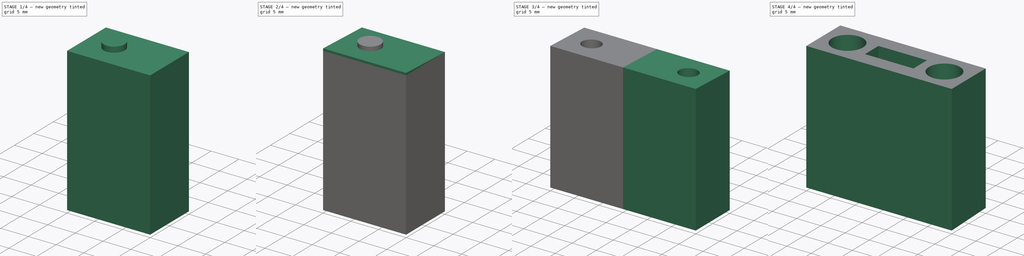
[diagram: build sequence overview — one tinted view per stage of 4, left to right]
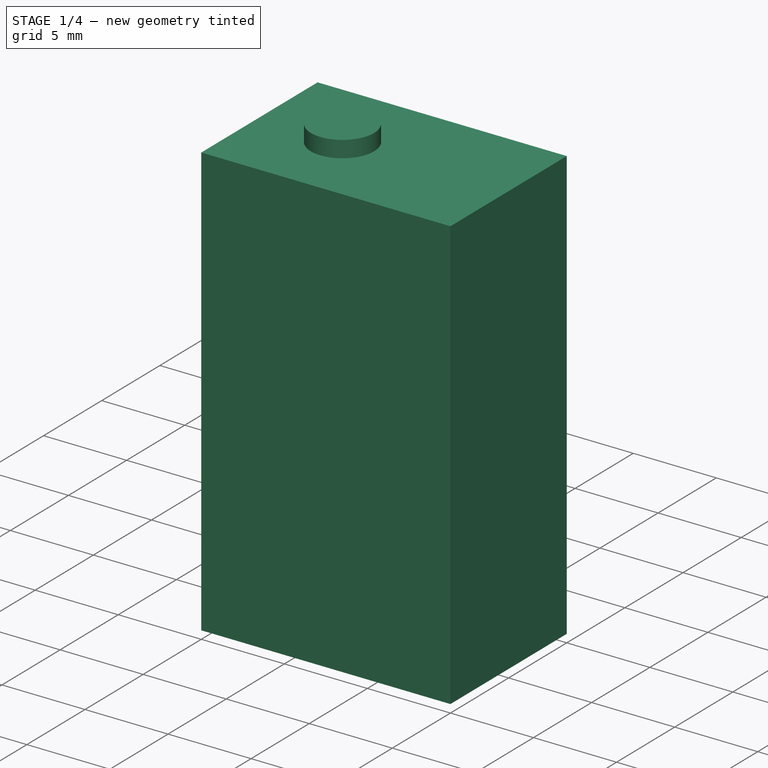
[diagram: stage 1 of 4 — iso view after this stage's code; geometry added in this stage tinted green]
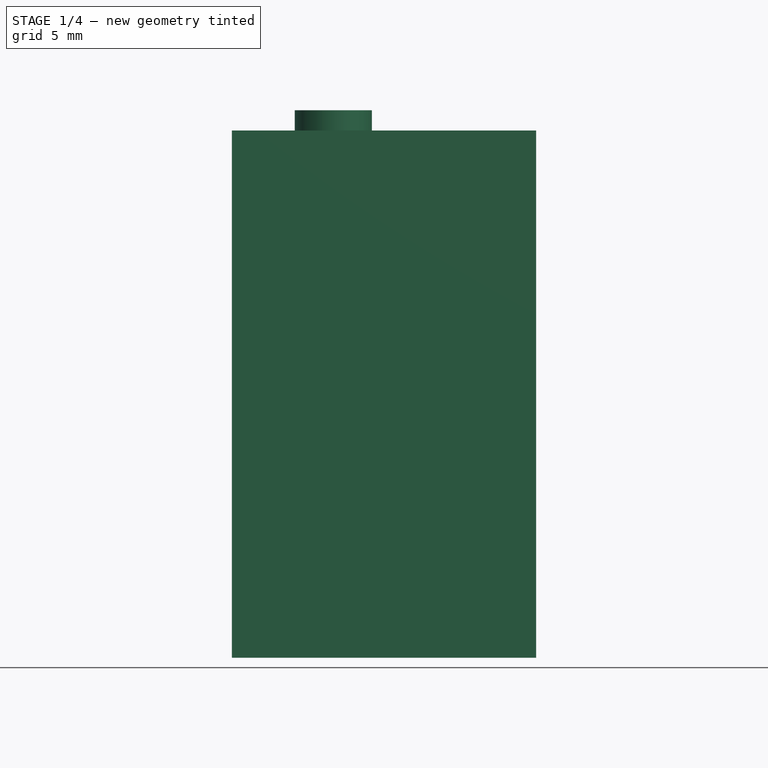
[diagram: stage 1 of 4 — front view after this stage's code; geometry added in this stage tinted green]
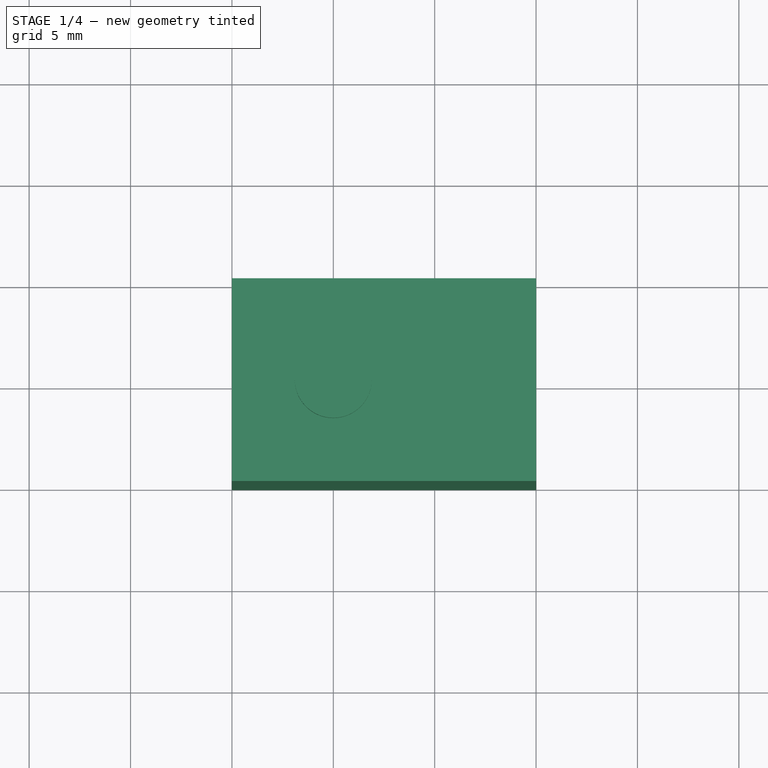
[diagram: stage 1 of 4 — top view after this stage's code; geometry added in this stage tinted green]
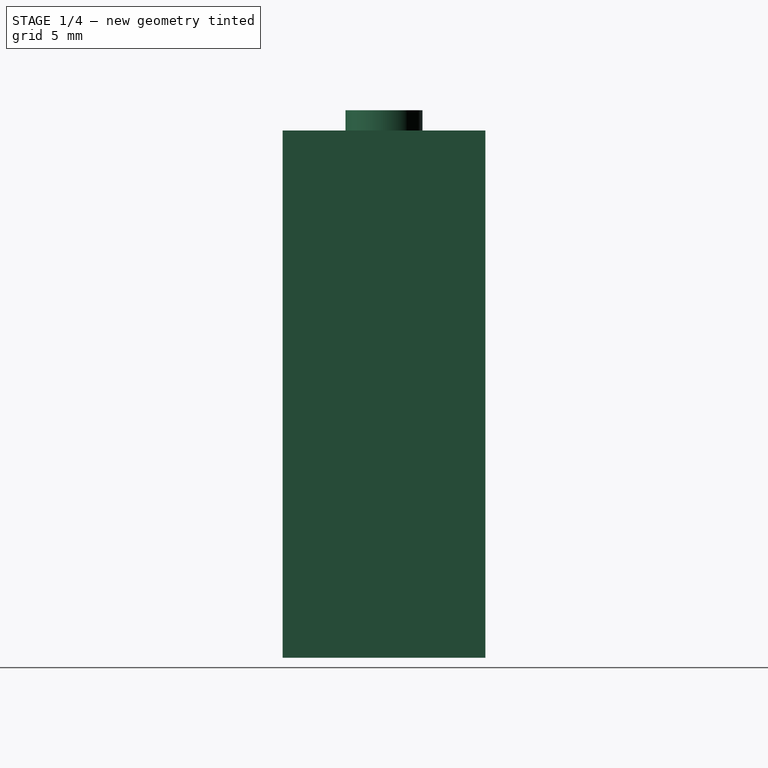
[diagram: stage 1 of 4 — right view after this stage's code; geometry added in this stage tinted green]
FCSTD DOCUMENT  (FreeCAD 0.15R4671 (Git))
Label: support_moustiquaires2
License: All rights reserved
LicenseURL: http://fr.wikipedia.org/wiki/<copyright redacted>
objects: Sketcher::SketchObject×6, PartDesign::Pad×2, Part::Mirroring×2, Part::MultiFuse×1, PartDesign::Revolution×1, Part::Cut×1, Part::Fuse×1, PartDesign::Pocket×1
note: 19 computed .brp shape members not serialized (recipe doc carries the construction recipe); baked Part::Feature solids carry a one-line shape summary decoded from their .brp

FEATURE [Sketcher::SketchObject] Sketch
  sketch-geometry (4):
    g0: LineSegment StartX=0 StartY=0 StartZ=0 EndX=15 EndY=0 EndZ=0
    g1: LineSegment StartX=15 StartY=0 StartZ=0 EndX=15 EndY=10 EndZ=0
    g2: LineSegment StartX=15 StartY=10 StartZ=0 EndX=0 EndY=10 EndZ=0
    g3: LineSegment StartX=0 StartY=10 StartZ=0 EndX=0 EndY=0 EndZ=0
  constraints (11):
    c: Coincident(g0,g1)
    c: Coincident(g1,g2)
    c: Coincident(g2,g3)
    c: Coincident(g3,g0)
    c: Horizontal(g0)
    c: Horizontal(g2)
    c: Vertical(g1)
    c: Vertical(g3)
    c: Coincident(g0,g-1)
    c: DistanceY(g-1,g1) = 10
    c: DistanceX(g-1,g1) = 15
FEATURE [PartDesign::Pad] Pad
  Length = 26
  Length2 = 100
  Sketch = -> Sketch
  Type = 0
FEATURE [Sketcher::SketchObject] Sketch002
  Placement = pos=(0,0,0) rot=(1,0,0;3.14159rad)
  Support = -> Fusion [Face3]
  sketch-geometry (1):
    g0: Circle CenterX=5 CenterY=-5 CenterZ=0 NormalX=0 NormalY=0 NormalZ=1 Radius=1.7
  constraints (3):
    c: DistanceX(g-1,g0) = 5
    c: DistanceY(g-1,g0) = -5
    c: Radius(g0) = 1.7
FEATURE [Sketcher::SketchObject] Sketch003
  Placement = pos=(0,0,0) rot=(1,0,0;3.14159rad)
  sketch-geometry (1):
    g0: Circle CenterX=5 CenterY=-5 CenterZ=0 NormalX=0 NormalY=0 NormalZ=1 Radius=3.2
  constraints (1):
    c: Radius(g0) = 3.2
FEATURE [Sketcher::SketchObject] Sketch004
  Placement = pos=(5,0,0) rot=(0.57735,0.57735,0.57735;2.0944rad)
  sketch-geometry (6):
    g0: LineSegment StartX=5 StartY=0 StartZ=0 EndX=8.2 EndY=0 EndZ=0
    g1: LineSegment StartX=8.2 StartY=0 StartZ=0 EndX=8.2 EndY=10 EndZ=0
    g2: LineSegment StartX=8.2 StartY=10 StartZ=0 EndX=6.9 EndY=11.3 EndZ=0
    g3: LineSegment StartX=6.9 StartY=11.3 StartZ=0 EndX=6.9 EndY=27 EndZ=0
    g4: LineSegment StartX=6.9 StartY=27 StartZ=0 EndX=5 EndY=27 EndZ=0
    g5: LineSegment StartX=5 StartY=27 StartZ=0 EndX=5 EndY=0 EndZ=0
  constraints (18):
    c: PointOnObject(g0,g-1)
    c: Horizontal(g0)
    c: Coincident(g0,g1)
    c: Vertical(g1)
    c: Coincident(g1,g2)
    c: Coincident(g2,g3)
    c: Vertical(g3)
    c: Coincident(g3,g4)
    c: Horizontal(g4)
    c: Coincident(g4,g5)
    c: Coincident(g5,g0)
    c: Vertical(g5)
    c: DistanceX(g-1,g0) = 5
    c: DistanceX(g0) = 3.2
    c: DistanceY(g-1,g1) = 10
    c: DistanceY(g-1,g4) = 27
    c: DistanceX(g4) = -1.9
    c: Angle(g2,g0) = 0.785398
FEATURE [PartDesign::Revolution] Revolution
  Angle = 360
  Axis = (0,0,-8.88305)
  Base = (5,5,13.2)
  Placement = pos=(5,0,0) rot=(0.57735,0.57735,0.57735;2.0944rad)
  ReferenceAxis = -> Sketch004 [Axis0]
  Sketch = -> Sketch004
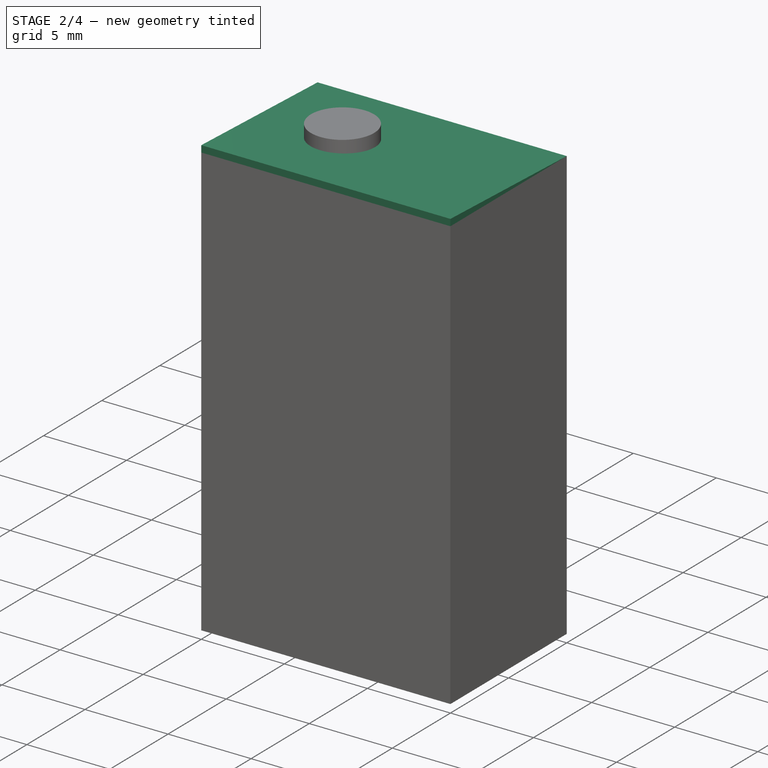
[diagram: stage 2 of 4 — iso view after this stage's code; geometry added in this stage tinted green]
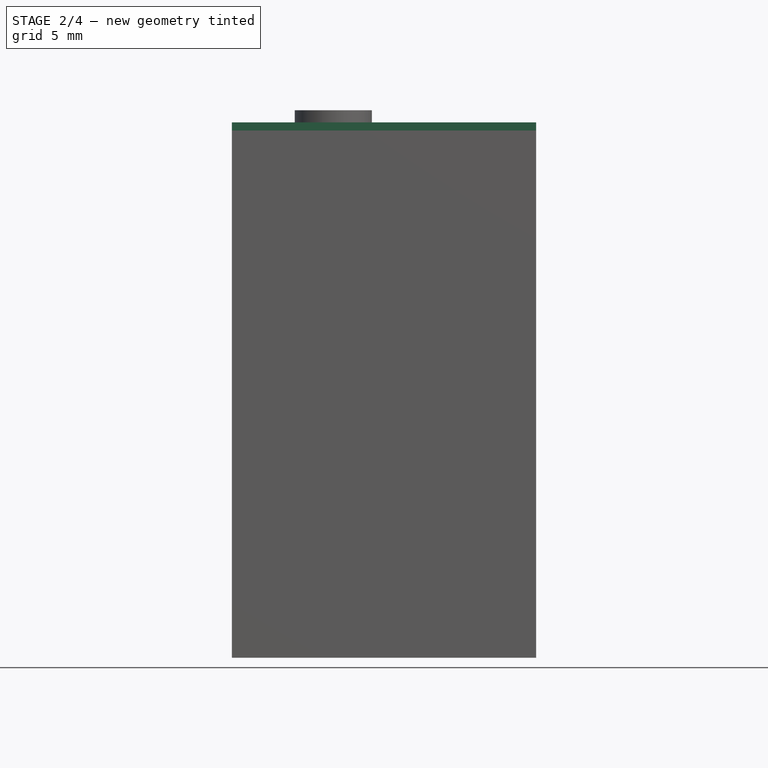
[diagram: stage 2 of 4 — front view after this stage's code; geometry added in this stage tinted green]
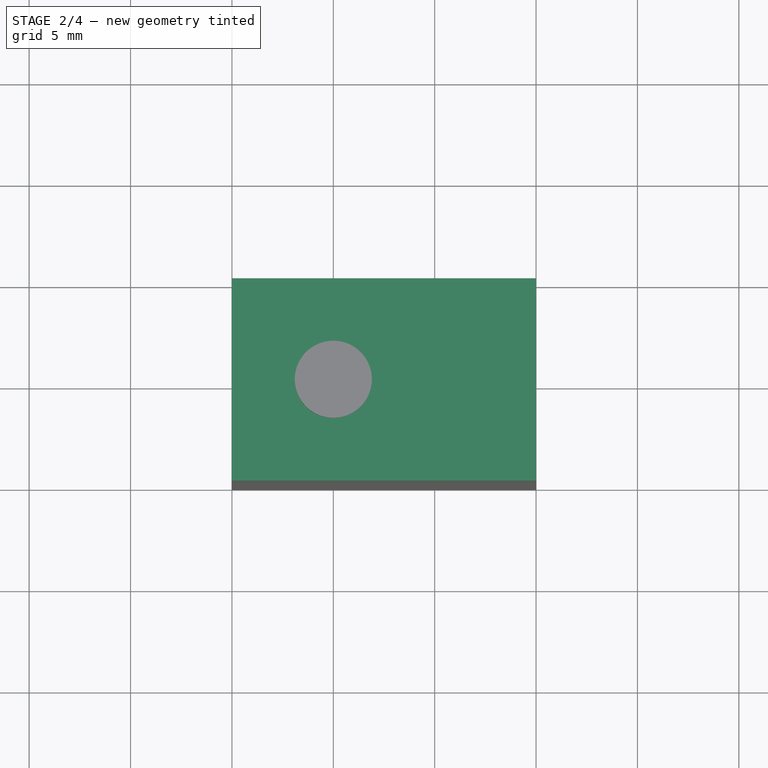
[diagram: stage 2 of 4 — top view after this stage's code; geometry added in this stage tinted green]
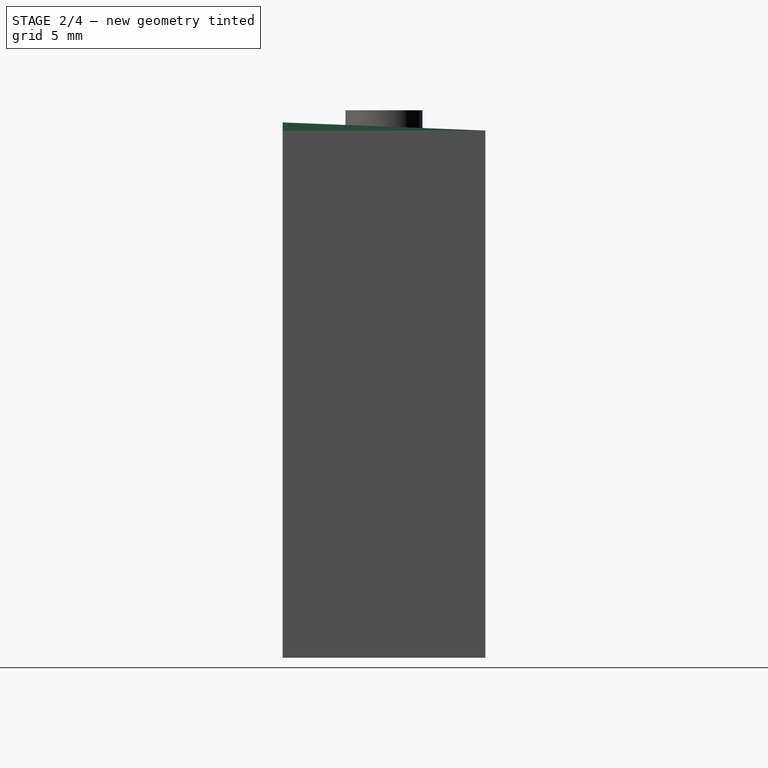
[diagram: stage 2 of 4 — right view after this stage's code; geometry added in this stage tinted green]
FEATURE [Sketcher::SketchObject] Sketch001
  ExternalGeometry = -> [Pad]
  Placement = pos=(15,0,0) rot=(0.57735,0.57735,0.57735;2.0944rad)
  Support = -> Pad [Face2]
  sketch-geometry (3):
    g0: LineSegment StartX=0 StartY=26 StartZ=0 EndX=10 EndY=26 EndZ=0
    g1: LineSegment StartX=10 StartY=26 StartZ=0 EndX=0 EndY=26.4 EndZ=0
    g2: LineSegment StartX=0 StartY=26.4 StartZ=0 EndX=0 EndY=26 EndZ=0
  constraints (7):
    c: Coincident(g-3,g0)
    c: Coincident(g0,g-3)
    c: Coincident(g0,g1)
    c: Coincident(g1,g2)
    c: Coincident(g2,g0)
    c: Vertical(g2)
    c: DistanceY(g1,g0) = -0.4
FEATURE [PartDesign::Pad] Pad001
  Length = 15
  Length2 = 100
  Reversed = true
  Sketch = -> Sketch001
  Type = 0
FEATURE [Part::MultiFuse] Fusion
  Shapes = -> [Pad,Pad001]
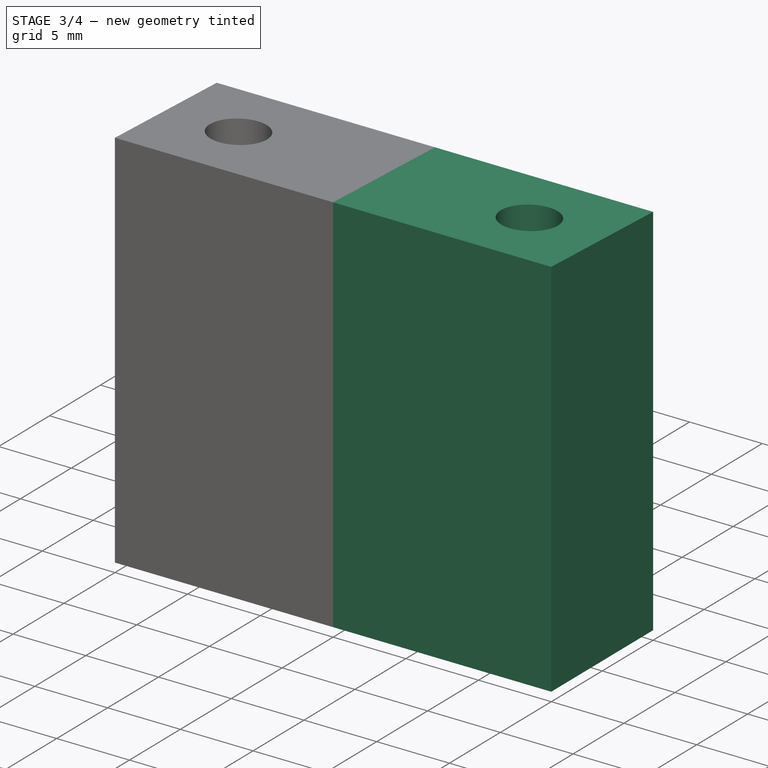
[diagram: stage 3 of 4 — iso view after this stage's code; geometry added in this stage tinted green]
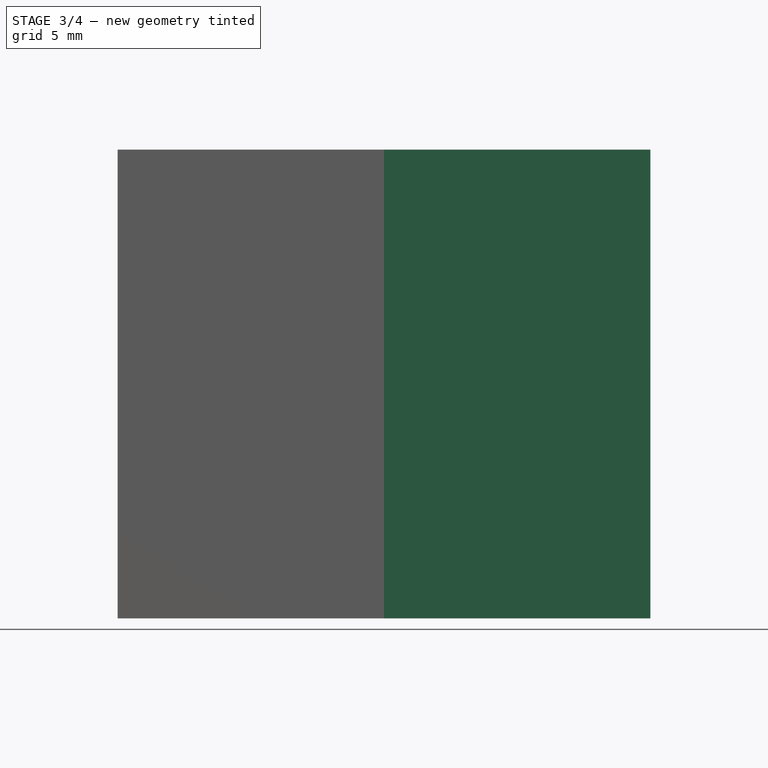
[diagram: stage 3 of 4 — front view after this stage's code; geometry added in this stage tinted green]
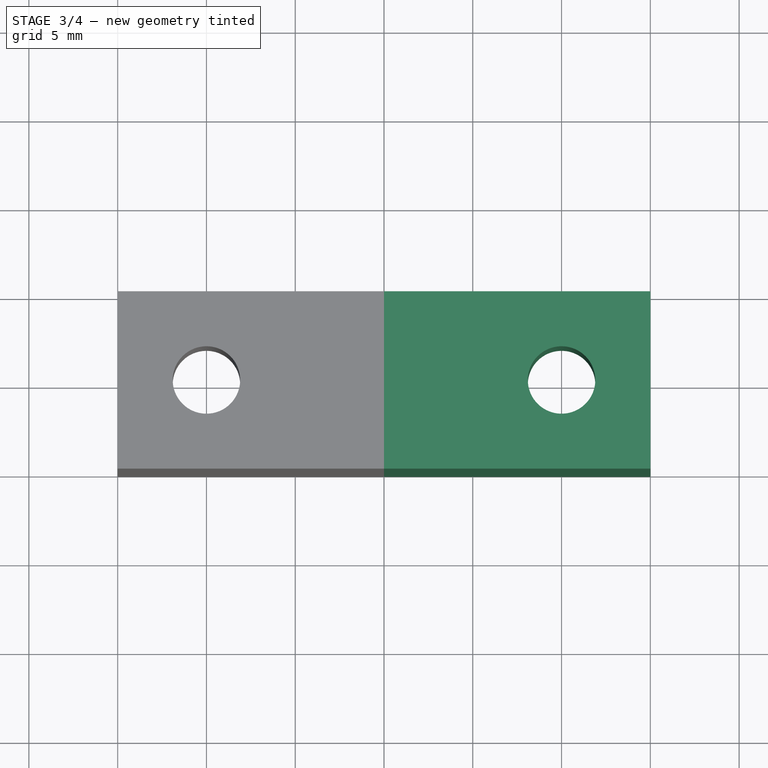
[diagram: stage 3 of 4 — top view after this stage's code; geometry added in this stage tinted green]
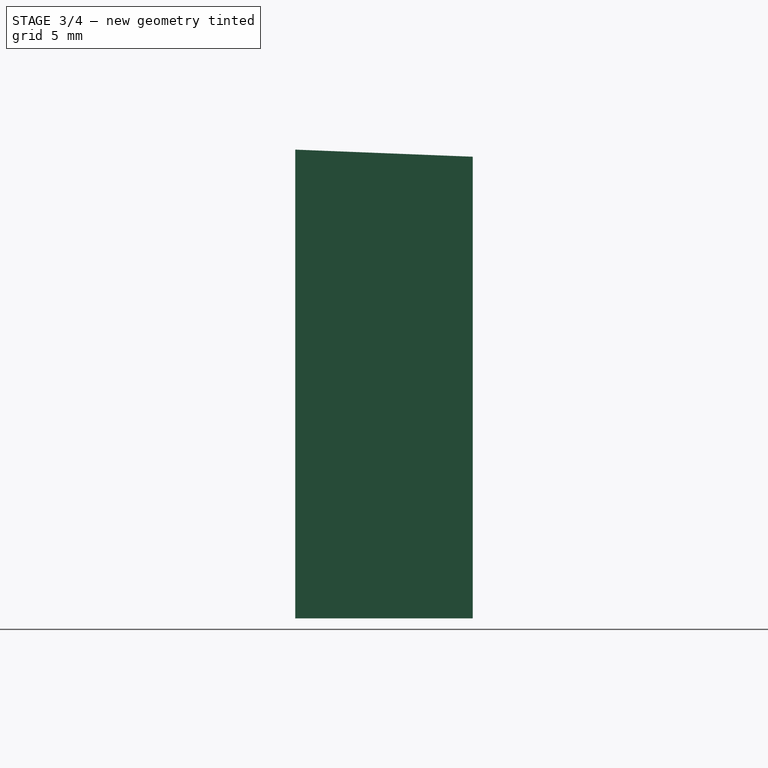
[diagram: stage 3 of 4 — right view after this stage's code; geometry added in this stage tinted green]
FEATURE [Part::Cut] Cut
  Base = -> Fusion
  Tool = -> Revolution
FEATURE [Part::Mirroring] Part__Mirroring  label="Cut (Mirror #1)"
  Base = (15,0,0)
  Normal = (1,0,0)
  Source = -> Cut
FEATURE [Part::Fuse] Fusion001
  Base = -> Cut
  Tool = -> Part__Mirroring
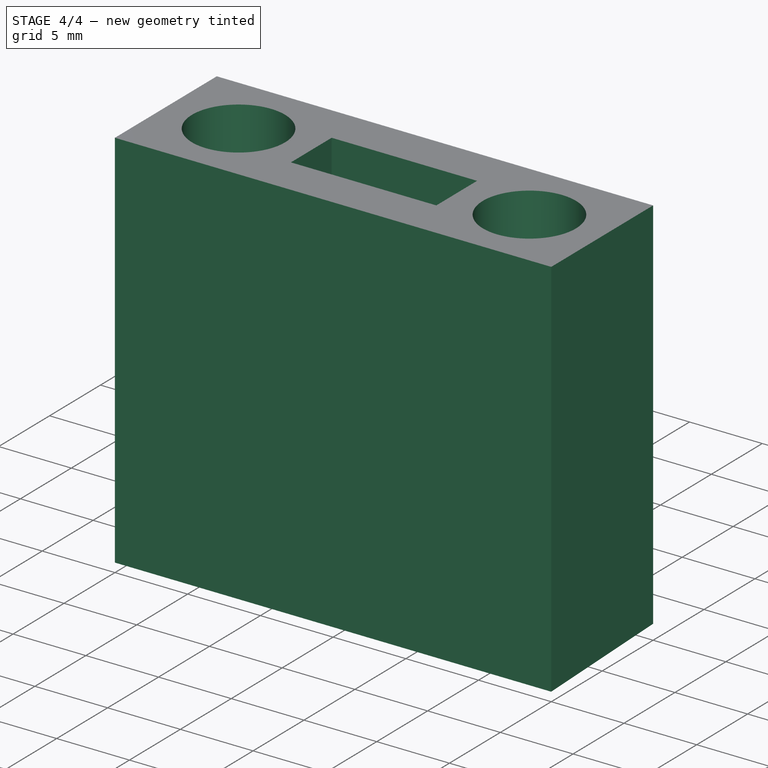
[diagram: stage 4 of 4 — iso view after this stage's code; geometry added in this stage tinted green]
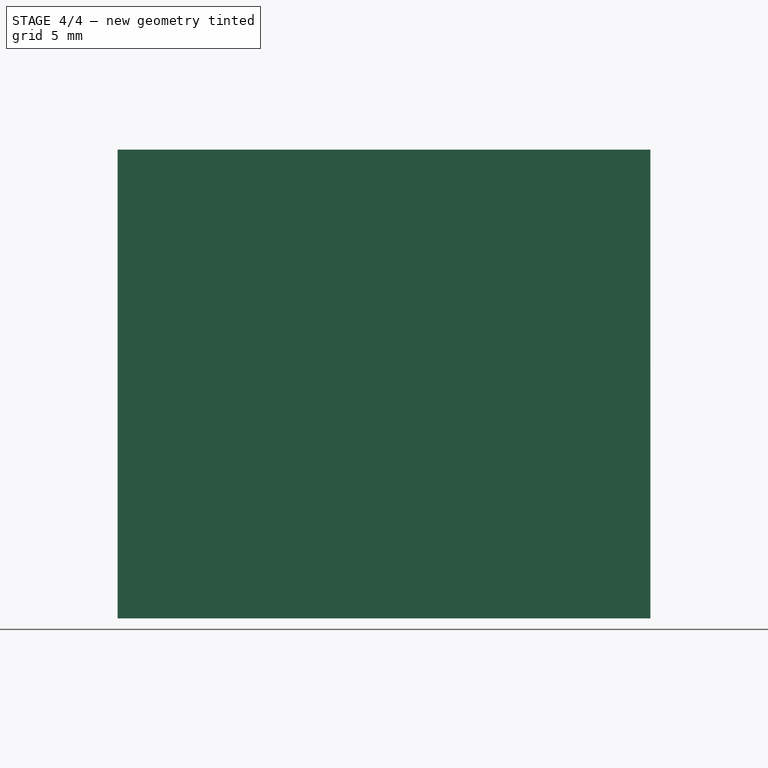
[diagram: stage 4 of 4 — front view after this stage's code; geometry added in this stage tinted green]
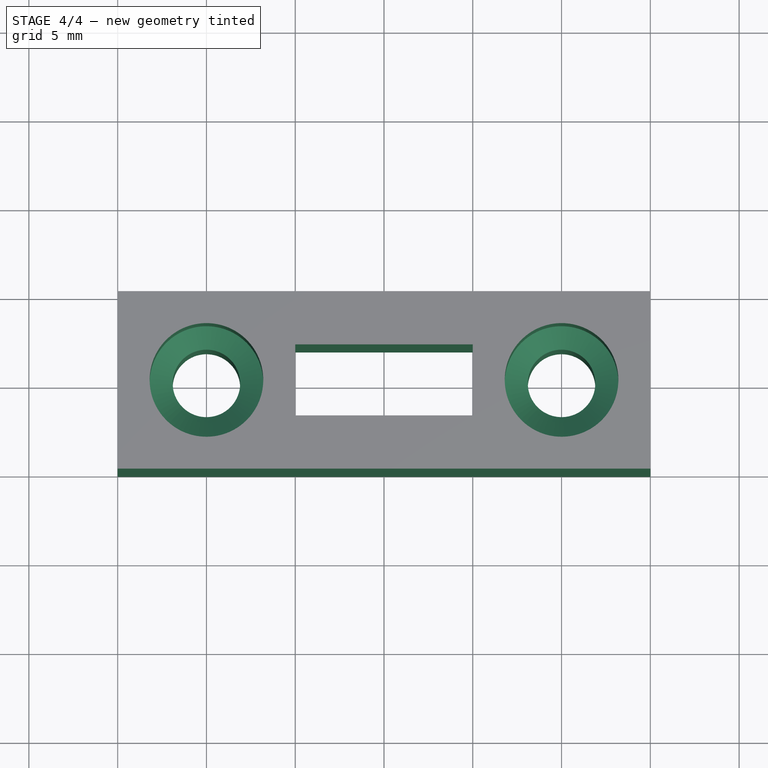
[diagram: stage 4 of 4 — top view after this stage's code; geometry added in this stage tinted green]
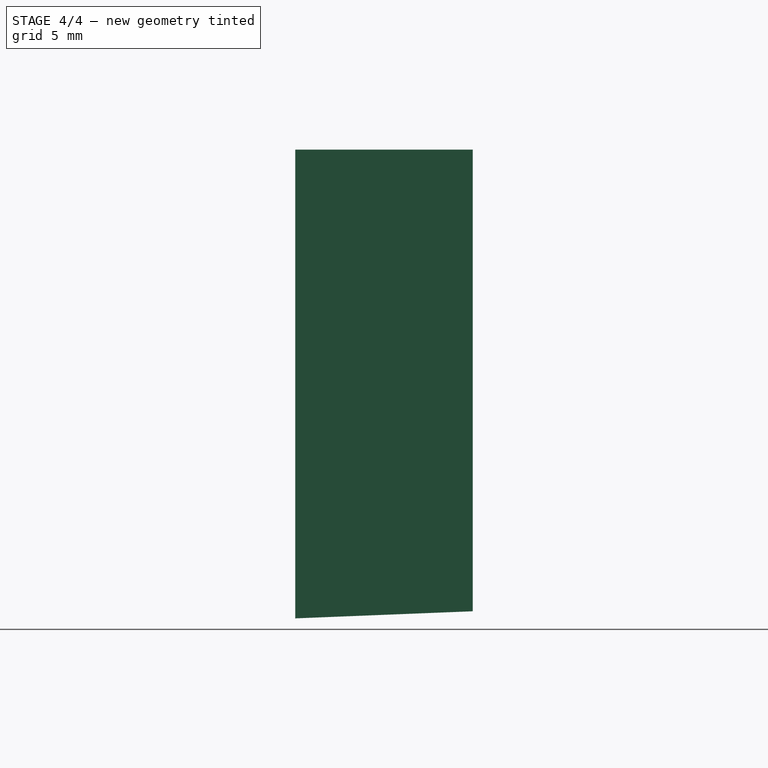
[diagram: stage 4 of 4 — right view after this stage's code; geometry added in this stage tinted green]
FEATURE [Part::Mirroring] Part__Mirroring001  label="Fusion001 (Mirror #2)"
  Base = (0,0,0)
  Normal = (0,0,1)
  Source = -> Fusion001
FEATURE [Sketcher::SketchObject] Sketch005
  Support = -> Part__Mirroring001 [Face3]
  sketch-geometry (4):
    g0: LineSegment StartX=10 StartY=7 StartZ=0 EndX=20 EndY=7 EndZ=0
    g1: LineSegment StartX=20 StartY=7 StartZ=0 EndX=20 EndY=3 EndZ=0
    g2: LineSegment StartX=20 StartY=3 StartZ=0 EndX=10 EndY=3 EndZ=0
    g3: LineSegment StartX=10 StartY=3 StartZ=0 EndX=10 EndY=7 EndZ=0
  constraints (12):
    c: Coincident(g0,g1)
    c: Coincident(g1,g2)
    c: Coincident(g2,g3)
    c: Coincident(g3,g0)
    c: Horizontal(g0)
    c: Horizontal(g2)
    c: Vertical(g1)
    c: Vertical(g3)
    c: DistanceX(g2) = 10
    c: DistanceX(g2) = -10
    c: DistanceY(g-1,g2) = 3
    c: DistanceY(g3) = 4
FEATURE [PartDesign::Pocket] Pocket
  Length = 5
  Sketch = -> Sketch005
  Type = 1
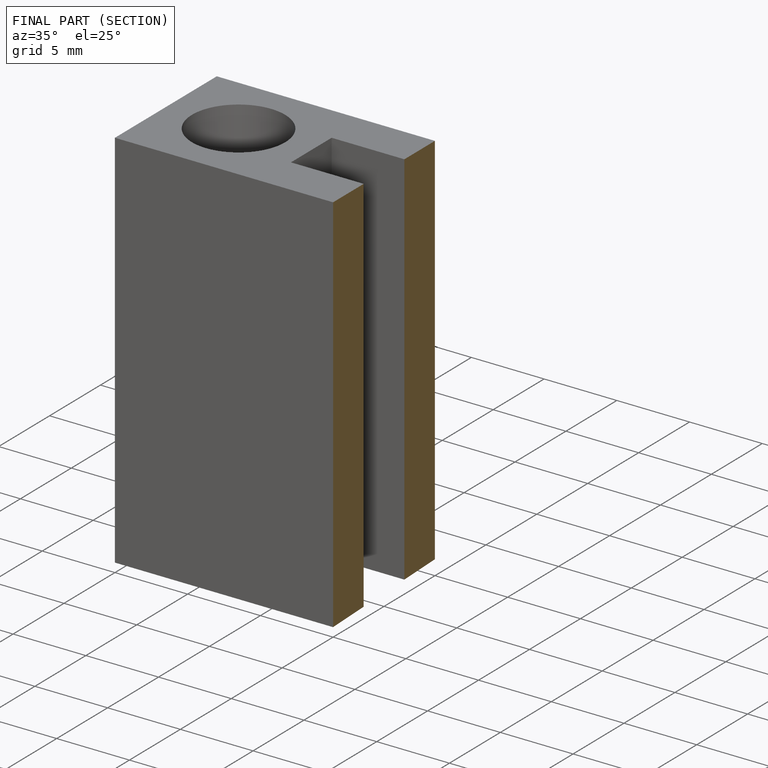
[diagram: finished part — half-section view (interior)]
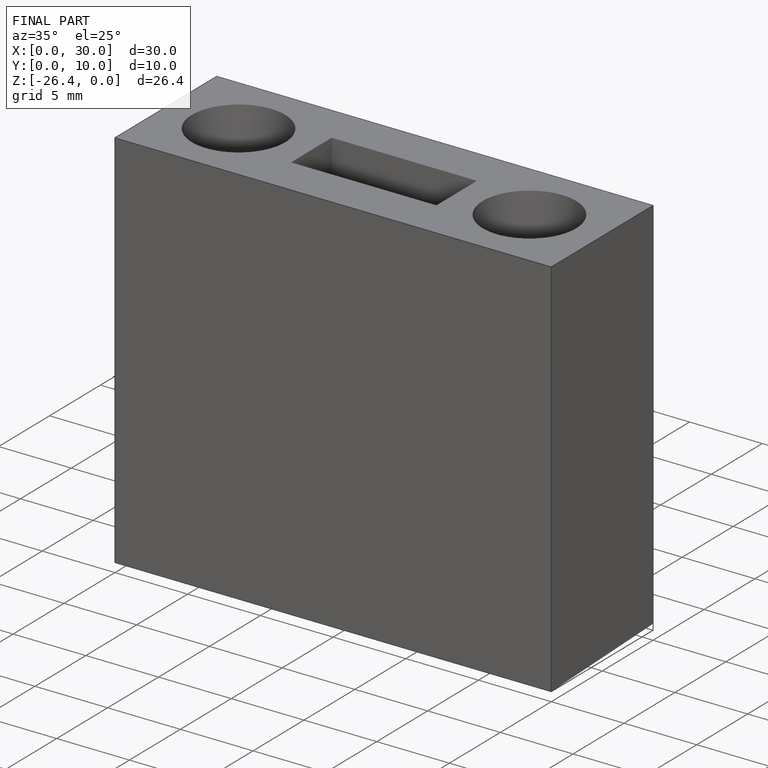
[diagram: finished part — iso view with bounding-box wireframe]
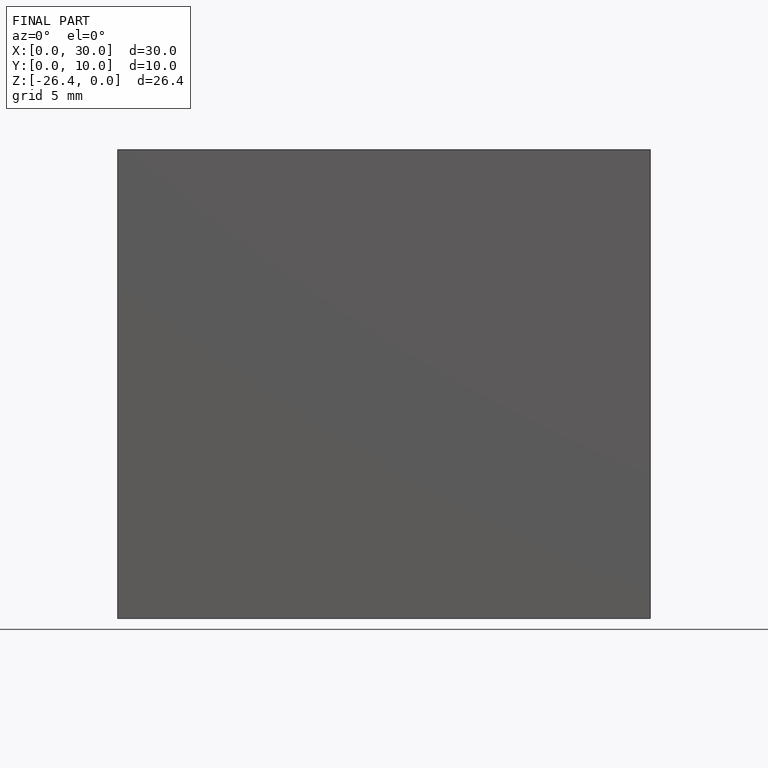
[diagram: finished part — front view with bounding-box wireframe]
